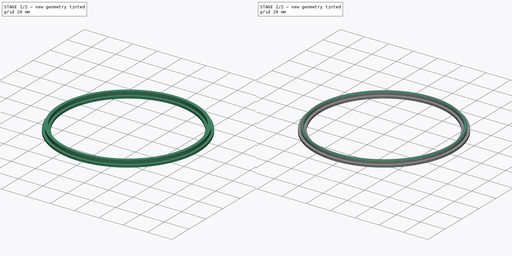
[diagram: build sequence overview — one tinted view per stage of 2, left to right]
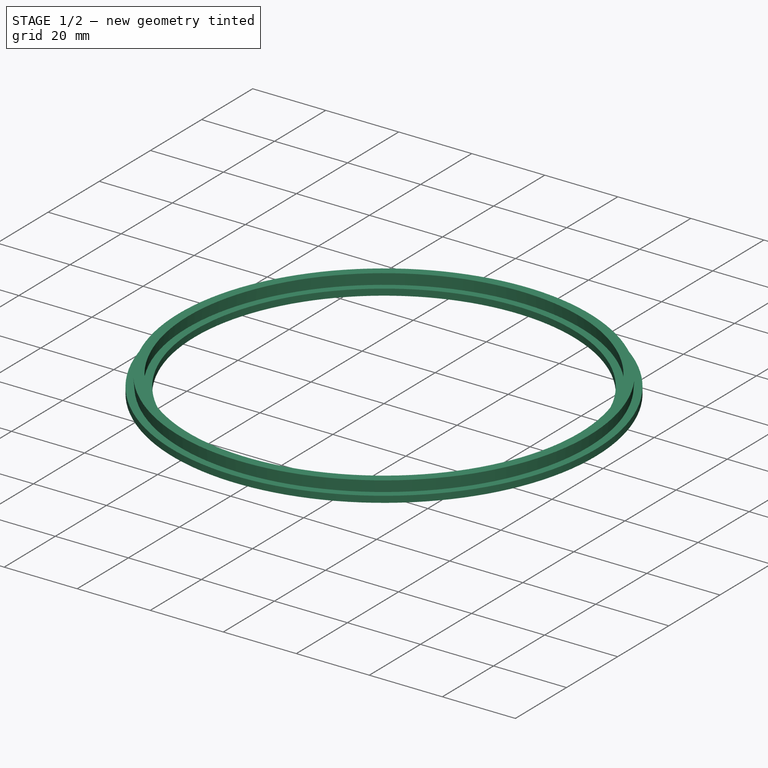
[diagram: stage 1 of 2 — iso view after this stage's code; geometry added in this stage tinted green]
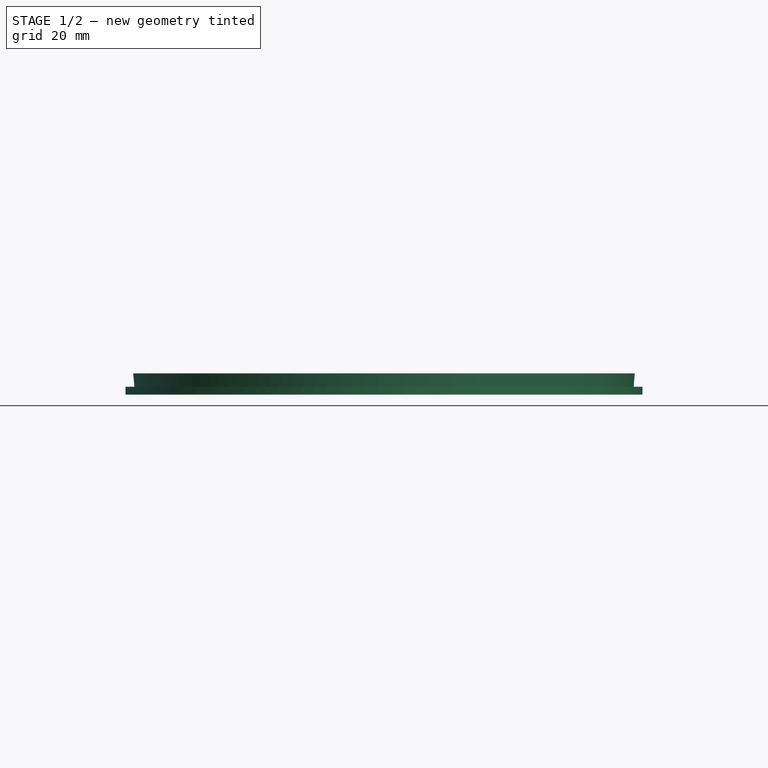
[diagram: stage 1 of 2 — front view after this stage's code; geometry added in this stage tinted green]
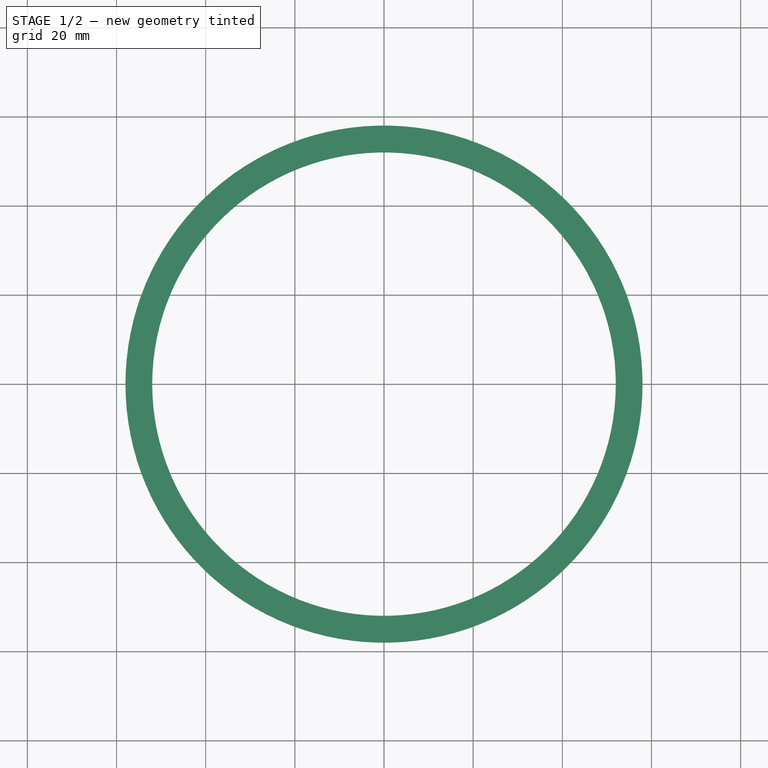
[diagram: stage 1 of 2 — top view after this stage's code; geometry added in this stage tinted green]
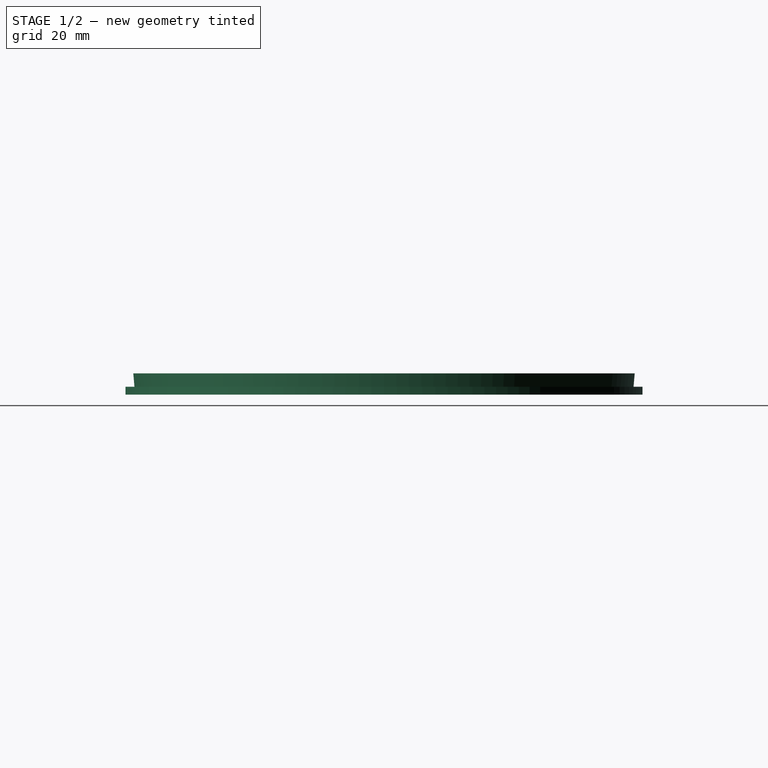
[diagram: stage 1 of 2 — right view after this stage's code; geometry added in this stage tinted green]
FCSTD DOCUMENT  (FreeCAD 0.19R21300 +2313 (Git))
Label: gasket
License: All rights reserved
LicenseURL: http://en.wikipedia.org/wiki/All_rights_reserved
objects: Sketcher::SketchObject×1, PartDesign::Revolution×1, PartDesign::Draft×1, PartDesign::Chamfer×1, PartDesign::Body×1
note: 11 computed .brp shape members not serialized (recipe doc carries the construction recipe); baked Part::Feature solids carry a one-line shape summary decoded from their .brp

FEATURE [Sketcher::SketchObject] Sketch023
  MapMode = 5
  Placement = pos=(0,0,0) rot=(0,0.707107,0.707107;3.14159rad)
  sketch-geometry (10):
    g0: LineSegment [constr] StartX=0 StartY=0 StartZ=0 EndX=-55 EndY=0 EndZ=0
    g1: LineSegment [constr] StartX=-55 StartY=0 StartZ=0 EndX=-55 EndY=4.75 EndZ=0
    g2: LineSegment StartX=-52 StartY=0 StartZ=0 EndX=-58 EndY=0 EndZ=0
    g3: LineSegment StartX=-58 StartY=0 StartZ=0 EndX=-58 EndY=1.75 EndZ=0
    g4: LineSegment StartX=-52 StartY=0 StartZ=0 EndX=-52 EndY=1.75 EndZ=0
    g5: LineSegment StartX=-58 StartY=1.75 StartZ=0 EndX=-56 EndY=1.75 EndZ=0
    g6: LineSegment StartX=-52 StartY=1.75 StartZ=0 EndX=-54 EndY=1.75 EndZ=0
    g7: LineSegment StartX=-56 StartY=1.75 StartZ=0 EndX=-56 EndY=4.75 EndZ=0
    g8: LineSegment StartX=-56 StartY=4.75 StartZ=0 EndX=-54 EndY=4.75 EndZ=0
    g9: LineSegment StartX=-54 StartY=4.75 StartZ=0 EndX=-54 EndY=1.75 EndZ=0
  constraints (26):
    c: Coincident(g0,g-1)
    c: PointOnObject(g0,g-1)
    c: DistanceX(g0,g0) = 55
    c: Coincident(g1,g0)
    c: Vertical(g1)
    c: PointOnObject(g2,g0)
    c: Symmetric(g2,g2,g1)
    c: DistanceX(g2,g2) = 6
    c: Coincident(g3,g2)
    c: Coincident(g4,g2)
    c: Symmetric(g3,g4,g1)
    c: Vertical(g4)
    c: DistanceY(g3,g3) = 1.75
    c: Coincident(g5,g3)
    c: Coincident(g6,g4)
    c: Symmetric(g6,g5,g1)
    c: Horizontal(g5)
    c: DistanceX(g5,g5) = 2
    c: Coincident(g7,g5)
    c: Vertical(g7)
    c: Coincident(g8,g7)
    c: Coincident(g9,g8)
    c: Coincident(g9,g6)
    c: Symmetric(g7,g8,g1)
    c: DistanceY(g7,g7) = 3
    c: PointOnObject(g1,g8)
FEATURE [PartDesign::Revolution] Revolution002
  AllowMultiFace = false
  Angle = 360
  Axis = (-1e-16,2e-16,1)
  Base = (0,0,0)
  ClaimChildren = false
  Placement = pos=(0,0,0) rot=(0,0.707107,0.707107;3.14159rad)
  Profile = -> Sketch023
  ReferenceAxis = -> Sketch023 [V_Axis]
  Suppress = false
FEATURE [PartDesign::Draft] Draft005
  Angle = 5
  Base = -> Revolution002 [Face4,Face6]
  BaseFeature = -> Revolution002
  NeutralPlane = -> Revolution002 [Face3]
  Placement = pos=(0,0,0) rot=(0,0.707107,0.707107;3.14159rad)
  Reversed = true
  SupportTransform = false
  Suppress = false
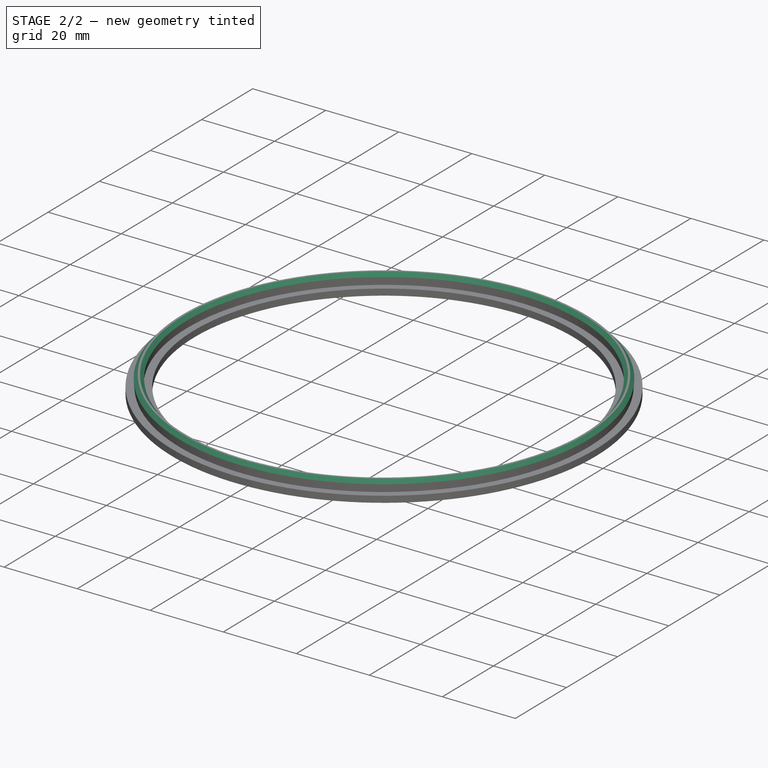
[diagram: stage 2 of 2 — iso view after this stage's code; geometry added in this stage tinted green]
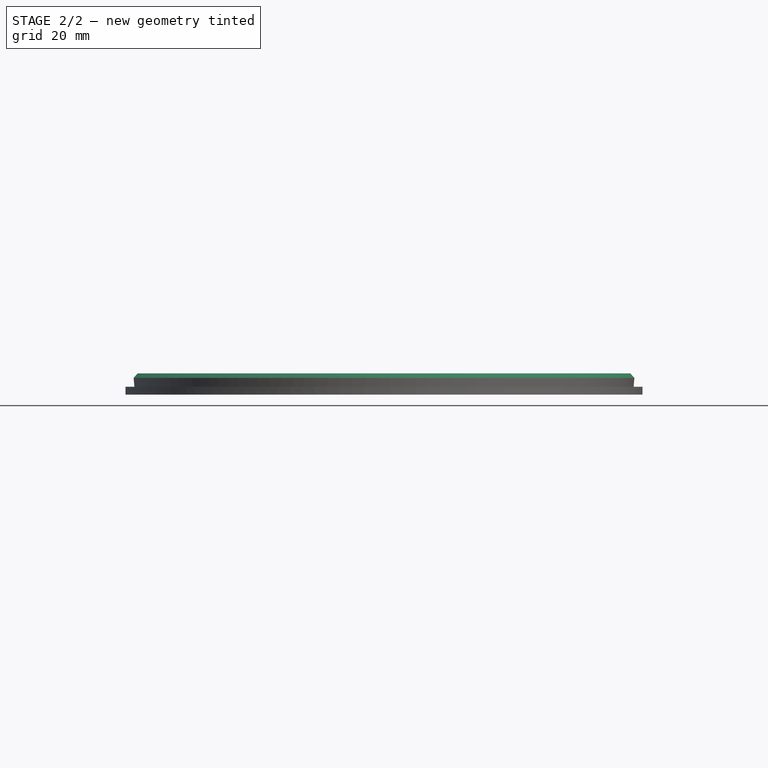
[diagram: stage 2 of 2 — front view after this stage's code; geometry added in this stage tinted green]
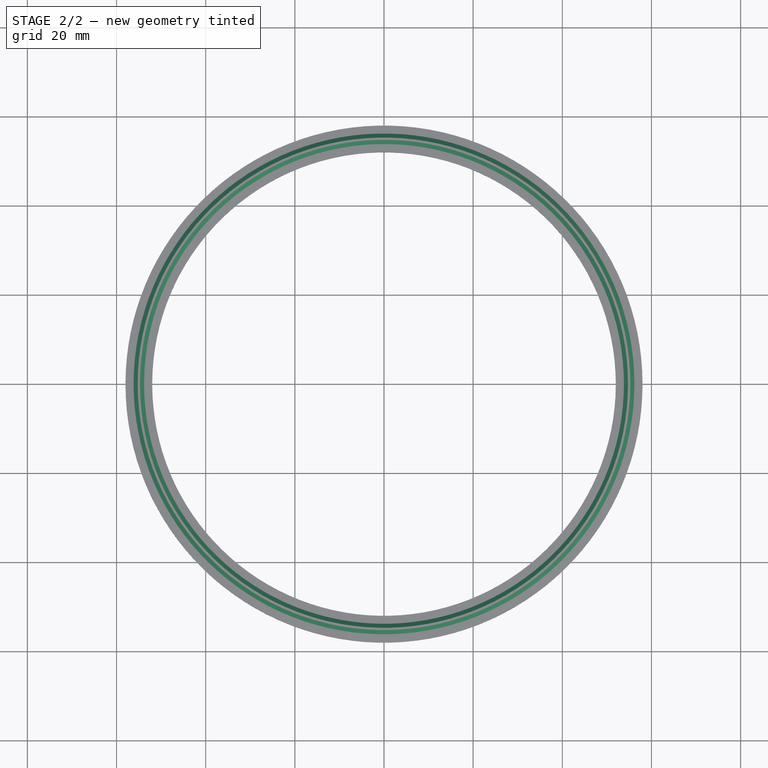
[diagram: stage 2 of 2 — top view after this stage's code; geometry added in this stage tinted green]
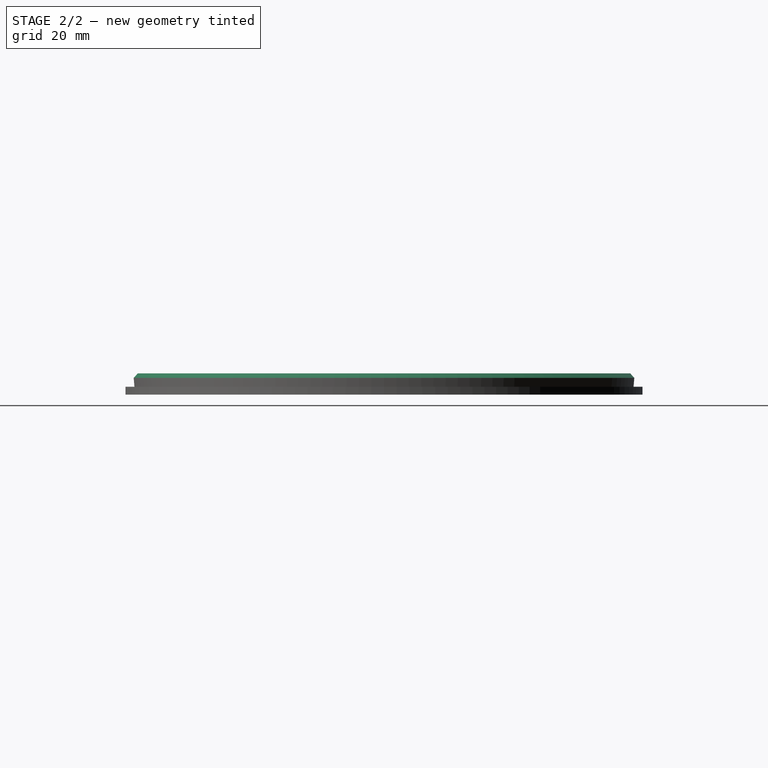
[diagram: stage 2 of 2 — right view after this stage's code; geometry added in this stage tinted green]
FEATURE [PartDesign::Chamfer] Chamfer004
  Angle = 45
  Base = -> Draft005 [Face5]
  BaseFeature = -> Draft005
  ChamferType = 0
  FlipDirection = false
  Placement = pos=(0,0,0) rot=(0,0.707107,0.707107;3.14159rad)
  Size = 1
  Size2 = 1
  SupportTransform = false
  Suppress = false
FEATURE [PartDesign::Body] Body004  label="Body"
  ExportMode = 0
  Group = -> [Sketch023,Revolution002,Draft005,Chamfer004]
  Origin = -> Origin009
  SingleSolid = true
  Tip = -> Chamfer004
  _ExportChildren = -> [Revolution002,Draft005,Chamfer004]
  _GroupVersion = 1
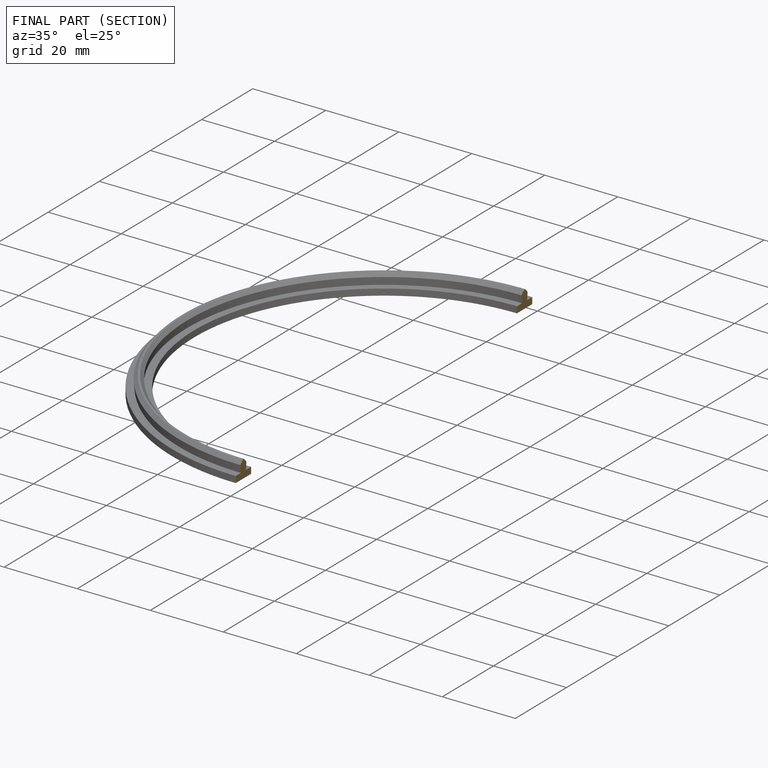
[diagram: finished part — half-section view (interior)]
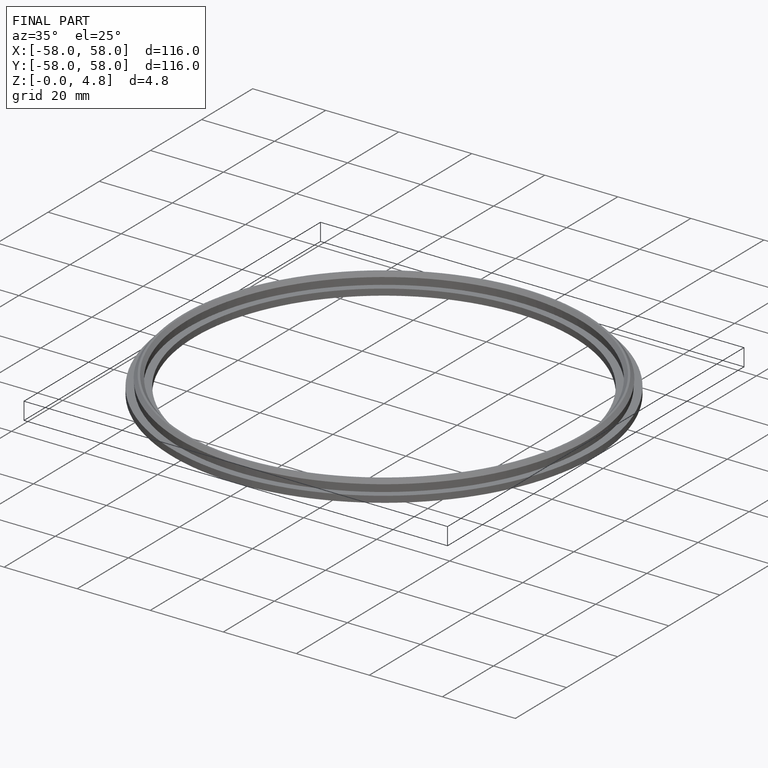
[diagram: finished part — iso view with bounding-box wireframe]
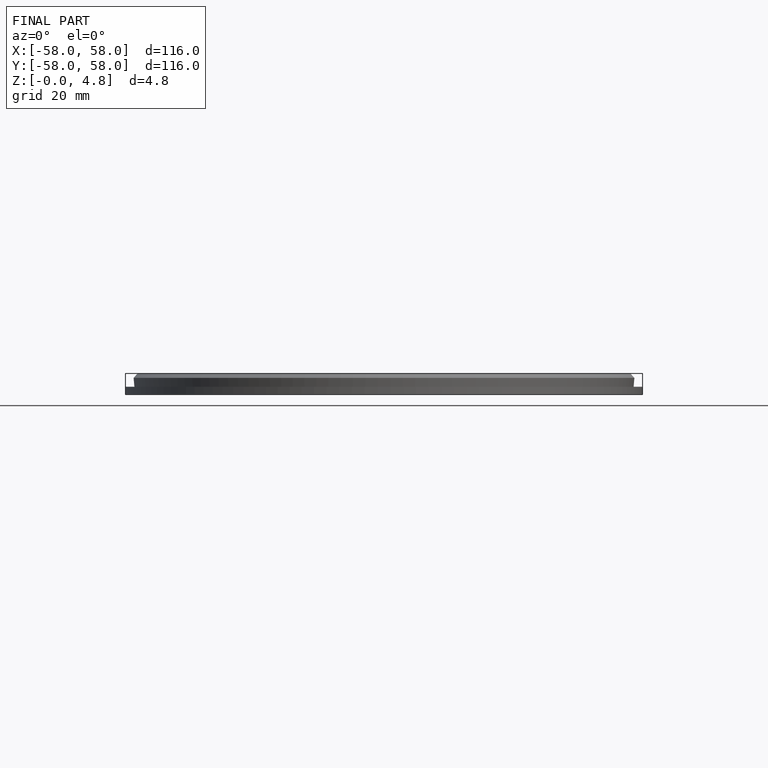
[diagram: finished part — front view with bounding-box wireframe]
